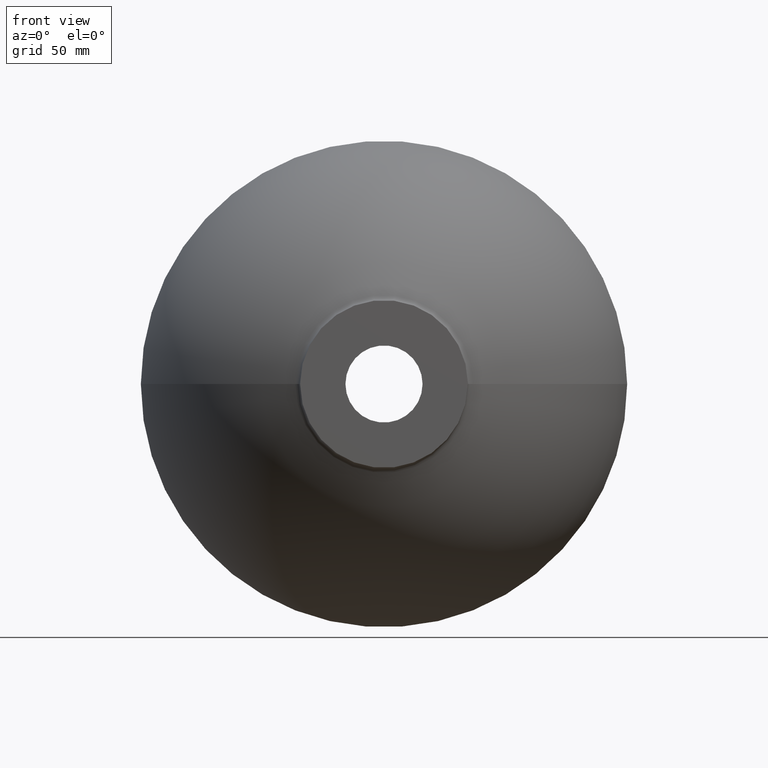
[diagram: clean part render]
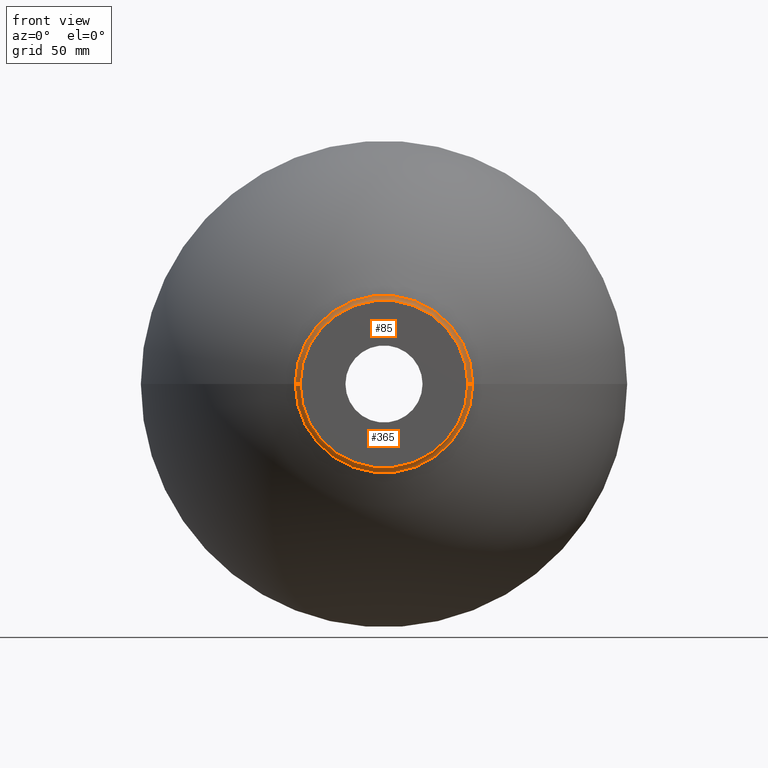
[diagram: same view with one multi-face feature highlighted, each face labeled with its STEP entity id]
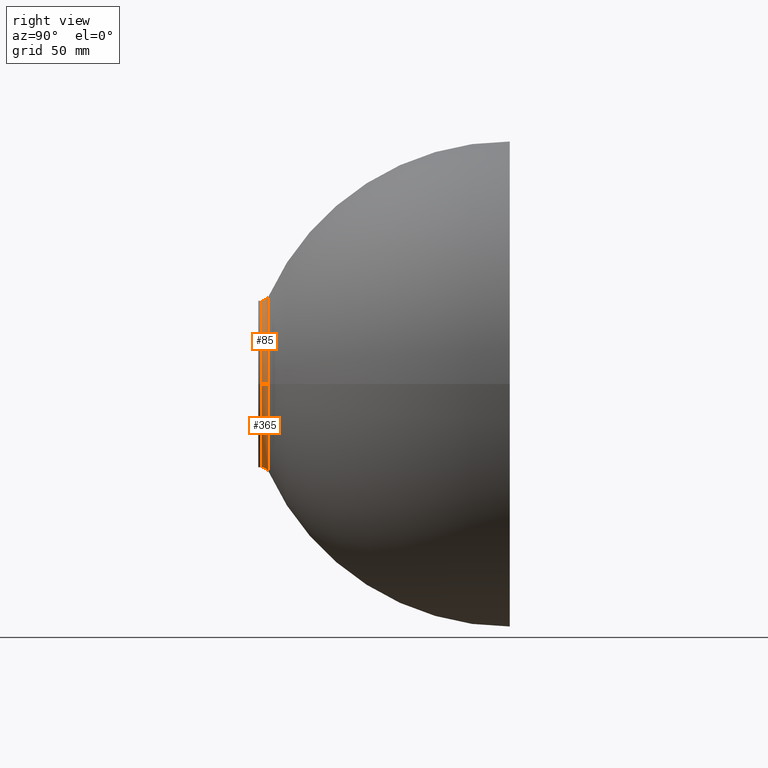
[diagram: same view with one multi-face feature highlighted, each face labeled with its STEP entity id]
A machine part, front view. The highlighted faces form ONE feature: a constant-radius fillet chain: 2 tangent blend faces with common blend radius 5 mm. The faces share edges in the B-rep.
A second angle (right view) of the same feature is appended — it is thin or edge-on in the first view.
Their STEP definitions:
[1] entity #85 (Torus):
#7 = AXIS2_PLACEMENT_3D ( 'NONE', #152, #147, #189 ) ;
#14 = ORIENTED_EDGE ( 'NONE', *, *, #96, .T. ) ;
#15 = DIRECTION ( 'NONE',  ( -1.104785946437366900E-016, 1.000000000000000000, -0.0000000000000000000 ) ) ;
#21 = EDGE_CURVE ( 'NONE', #97, #391, #175, .T. ) ;
#27 = CIRCLE ( 'NONE', #313, 5.000000000000004400 ) ;
#36 = EDGE_CURVE ( 'NONE', #220, #200, #27, .T. ) ;
#85 = ADVANCED_FACE ( 'NONE', ( #217 ), #214, .F. ) ;
#93 = CARTESIAN_POINT ( 'NONE',  ( 52.91129032258075400, 6.303157817668914500, 1.211857141043355500E-014 ) ) ;
#96 = EDGE_CURVE ( 'NONE', #200, #391, #129, .T. ) ;
#97 = VERTEX_POINT ( 'NONE', #93 ) ;
#128 = AXIS2_PLACEMENT_3D ( 'NONE', #363, #15, #190 ) ;
#129 = CIRCLE ( 'NONE', #128, 50.00000000000002100 ) ;
#138 = CIRCLE ( 'NONE', #256, 52.91129032258073300 ) ;
#139 = EDGE_CURVE ( 'NONE', #220, #97, #138, .T. ) ;
#146 = ORIENTED_EDGE ( 'NONE', *, *, #139, .F. ) ;
#147 = DIRECTION ( 'NONE',  ( -1.224646799147353200E-016, -1.352972573047500600E-032, 1.000000000000000000 ) ) ;
#152 = CARTESIAN_POINT ( 'NONE',  ( 55.00000000000004300, 1.760329196264059500, 6.735557395310446600E-015 ) ) ;
#157 = CARTESIAN_POINT ( 'NONE',  ( 1.387778780781445700E-014, 1.760329196264053300, 0.0000000000000000000 ) ) ;
#172 = CARTESIAN_POINT ( 'NONE',  ( 50.00000000000004300, 1.760329196264057000, 6.123233995736769200E-015 ) ) ;
#175 = CIRCLE ( 'NONE', #7, 5.000000000000004400 ) ;
#187 = ORIENTED_EDGE ( 'NONE', *, *, #21, .F. ) ;
#189 = DIRECTION ( 'NONE',  ( 1.000000000000000000, 0.0000000000000000000, 1.224646799147352500E-016 ) ) ;
#190 = DIRECTION ( 'NONE',  ( -1.000000000000000000, -1.084202172485503900E-016, 0.0000000000000000000 ) ) ;
#191 = DIRECTION ( 'NONE',  ( -1.000000000000000000, -1.104785946437366900E-016, 0.0000000000000000000 ) ) ;
#200 = VERTEX_POINT ( 'NONE', #277 ) ;
#210 = AXIS2_PLACEMENT_3D ( 'NONE', #157, #419, #191 ) ;
#214 = TOROIDAL_SURFACE ( 'NONE', #210, 55.00000000000002800, 5.000000000000002700 ) ;
#217 = FACE_OUTER_BOUND ( 'NONE', #341, .T. ) ;
#220 = VERTEX_POINT ( 'NONE', #422 ) ;
#230 = CARTESIAN_POINT ( 'NONE',  ( -55.00000000000001400, 1.760329196264047300, 0.0000000000000000000 ) ) ;
#250 = ORIENTED_EDGE ( 'NONE', *, *, #36, .T. ) ;
#256 = AXIS2_PLACEMENT_3D ( 'NONE', #295, #430, #338 ) ;
#277 = CARTESIAN_POINT ( 'NONE',  ( -50.00000000000000700, 1.760329196264046200, 0.0000000000000000000 ) ) ;
#295 = CARTESIAN_POINT ( 'NONE',  ( 1.318142379030071500E-014, 6.303157817668908300, 0.0000000000000000000 ) ) ;
#313 = AXIS2_PLACEMENT_3D ( 'NONE', #230, #424, #359 ) ;
#338 = DIRECTION ( 'NONE',  ( -1.000000000000000000, -1.147492742834831600E-016, 0.0000000000000000000 ) ) ;
#341 = EDGE_LOOP ( 'NONE', ( #187, #146, #250, #14 ) ) ;
#359 = DIRECTION ( 'NONE',  ( -1.000000000000000000, 0.0000000000000000000, 0.0000000000000000000 ) ) ;
#363 = CARTESIAN_POINT ( 'NONE',  ( 1.368330911210086600E-014, 1.760329196264051700, 0.0000000000000000000 ) ) ;
#391 = VERTEX_POINT ( 'NONE', #172 ) ;
#419 = DIRECTION ( 'NONE',  ( -1.104785946437366900E-016, 1.000000000000000000, -0.0000000000000000000 ) ) ;
#422 = CARTESIAN_POINT ( 'NONE',  ( -52.91129032258071900, 6.303157817668902000, 0.0000000000000000000 ) ) ;
#424 = DIRECTION ( 'NONE',  ( 0.0000000000000000000, -0.0000000000000000000, -1.000000000000000000 ) ) ;
#430 = DIRECTION ( 'NONE',  ( -1.104785946437366900E-016, 1.000000000000000000, -0.0000000000000000000 ) ) ;
[2] entity #365 (Torus):
#3 = DIRECTION ( 'NONE',  ( -1.104785946437366900E-016, 1.000000000000000000, -0.0000000000000000000 ) ) ;
#7 = AXIS2_PLACEMENT_3D ( 'NONE', #152, #147, #189 ) ;
#21 = EDGE_CURVE ( 'NONE', #97, #391, #175, .T. ) ;
#27 = CIRCLE ( 'NONE', #313, 5.000000000000004400 ) ;
#36 = EDGE_CURVE ( 'NONE', #220, #200, #27, .T. ) ;
#73 = DIRECTION ( 'NONE',  ( -1.000000000000000000, -1.084202172485503900E-016, 0.0000000000000000000 ) ) ;
#93 = CARTESIAN_POINT ( 'NONE',  ( 52.91129032258075400, 6.303157817668914500, 1.211857141043355500E-014 ) ) ;
#97 = VERTEX_POINT ( 'NONE', #93 ) ;
#115 = TOROIDAL_SURFACE ( 'NONE', #248, 55.00000000000002800, 5.000000000000002700 ) ;
#132 = DIRECTION ( 'NONE',  ( -1.104785946437366900E-016, 1.000000000000000000, -0.0000000000000000000 ) ) ;
#136 = DIRECTION ( 'NONE',  ( -1.000000000000000000, -1.147492742834831600E-016, 0.0000000000000000000 ) ) ;
#143 = ORIENTED_EDGE ( 'NONE', *, *, #36, .F. ) ;
#147 = DIRECTION ( 'NONE',  ( -1.224646799147353200E-016, -1.352972573047500600E-032, 1.000000000000000000 ) ) ;
#152 = CARTESIAN_POINT ( 'NONE',  ( 55.00000000000004300, 1.760329196264059500, 6.735557395310446600E-015 ) ) ;
#172 = CARTESIAN_POINT ( 'NONE',  ( 50.00000000000004300, 1.760329196264057000, 6.123233995736769200E-015 ) ) ;
#175 = CIRCLE ( 'NONE', #7, 5.000000000000004400 ) ;
#185 = FACE_OUTER_BOUND ( 'NONE', #397, .T. ) ;
#189 = DIRECTION ( 'NONE',  ( 1.000000000000000000, 0.0000000000000000000, 1.224646799147352500E-016 ) ) ;
#200 = VERTEX_POINT ( 'NONE', #277 ) ;
#208 = AXIS2_PLACEMENT_3D ( 'NONE', #358, #345, #73 ) ;
#220 = VERTEX_POINT ( 'NONE', #422 ) ;
#230 = CARTESIAN_POINT ( 'NONE',  ( -55.00000000000001400, 1.760329196264047300, 0.0000000000000000000 ) ) ;
#232 = AXIS2_PLACEMENT_3D ( 'NONE', #434, #3, #136 ) ;
#240 = EDGE_CURVE ( 'NONE', #391, #200, #376, .T. ) ;
#248 = AXIS2_PLACEMENT_3D ( 'NONE', #378, #132, #314 ) ;
#257 = ORIENTED_EDGE ( 'NONE', *, *, #21, .T. ) ;
#269 = ORIENTED_EDGE ( 'NONE', *, *, #240, .T. ) ;
#277 = CARTESIAN_POINT ( 'NONE',  ( -50.00000000000000700, 1.760329196264046200, 0.0000000000000000000 ) ) ;
#313 = AXIS2_PLACEMENT_3D ( 'NONE', #230, #424, #359 ) ;
#314 = DIRECTION ( 'NONE',  ( -1.000000000000000000, -1.104785946437366900E-016, 0.0000000000000000000 ) ) ;
#328 = CIRCLE ( 'NONE', #232, 52.91129032258073300 ) ;
#331 = ORIENTED_EDGE ( 'NONE', *, *, #352, .F. ) ;
#345 = DIRECTION ( 'NONE',  ( -1.104785946437366900E-016, 1.000000000000000000, -0.0000000000000000000 ) ) ;
#352 = EDGE_CURVE ( 'NONE', #97, #220, #328, .T. ) ;
#358 = CARTESIAN_POINT ( 'NONE',  ( 1.368330911210086600E-014, 1.760329196264051700, 0.0000000000000000000 ) ) ;
#359 = DIRECTION ( 'NONE',  ( -1.000000000000000000, 0.0000000000000000000, 0.0000000000000000000 ) ) ;
#365 = ADVANCED_FACE ( 'NONE', ( #185 ), #115, .F. ) ;
#376 = CIRCLE ( 'NONE', #208, 50.00000000000002100 ) ;
#378 = CARTESIAN_POINT ( 'NONE',  ( 1.387778780781445700E-014, 1.760329196264053300, 0.0000000000000000000 ) ) ;
#391 = VERTEX_POINT ( 'NONE', #172 ) ;
#397 = EDGE_LOOP ( 'NONE', ( #331, #257, #269, #143 ) ) ;
#422 = CARTESIAN_POINT ( 'NONE',  ( -52.91129032258071900, 6.303157817668902000, 0.0000000000000000000 ) ) ;
#424 = DIRECTION ( 'NONE',  ( 0.0000000000000000000, -0.0000000000000000000, -1.000000000000000000 ) ) ;
#434 = CARTESIAN_POINT ( 'NONE',  ( 1.318142379030071500E-014, 6.303157817668908300, 0.0000000000000000000 ) ) ;